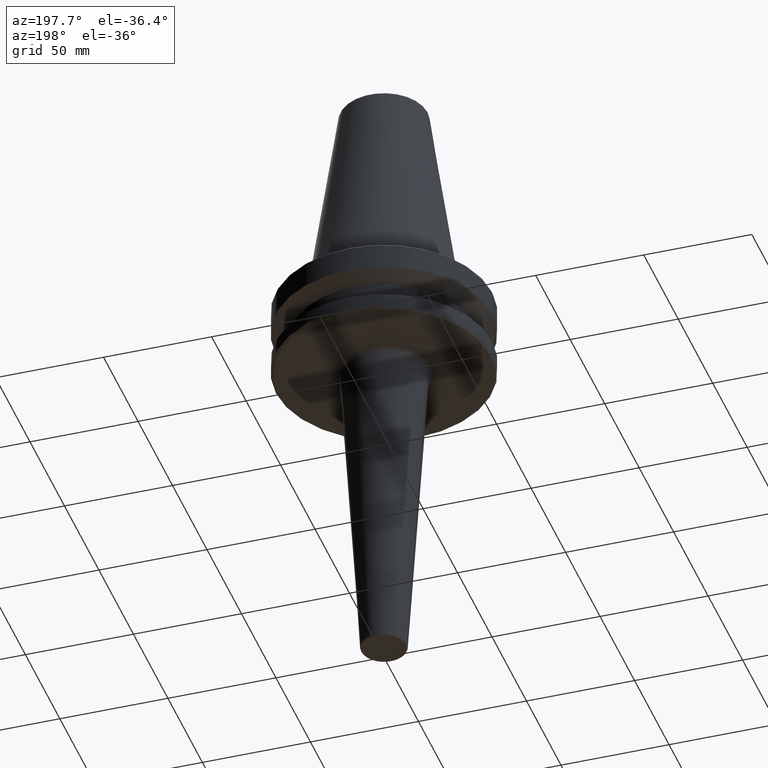
[diagram: clean part render]
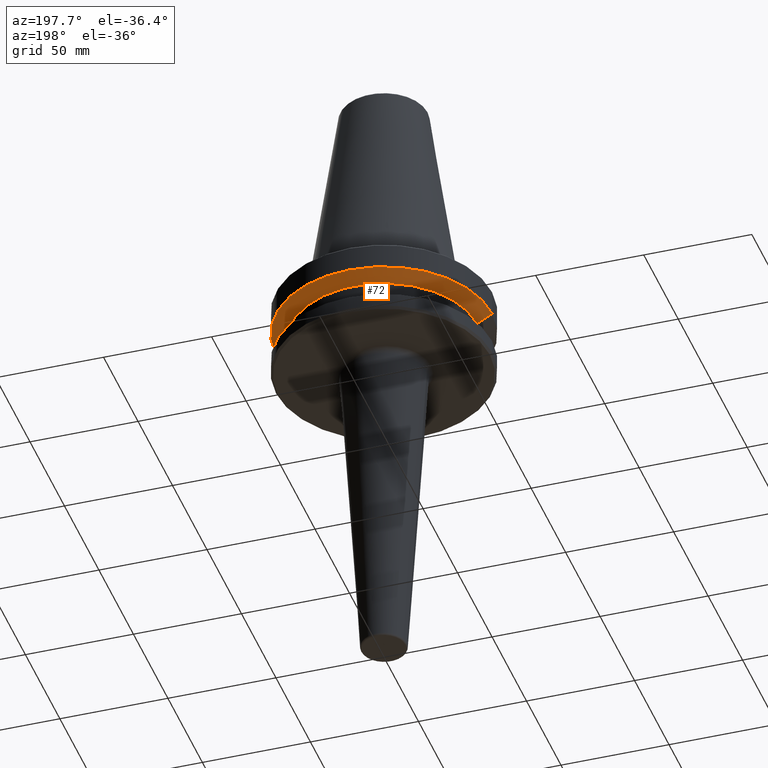
[diagram: same view with one face highlighted and labeled with its STEP entity id]
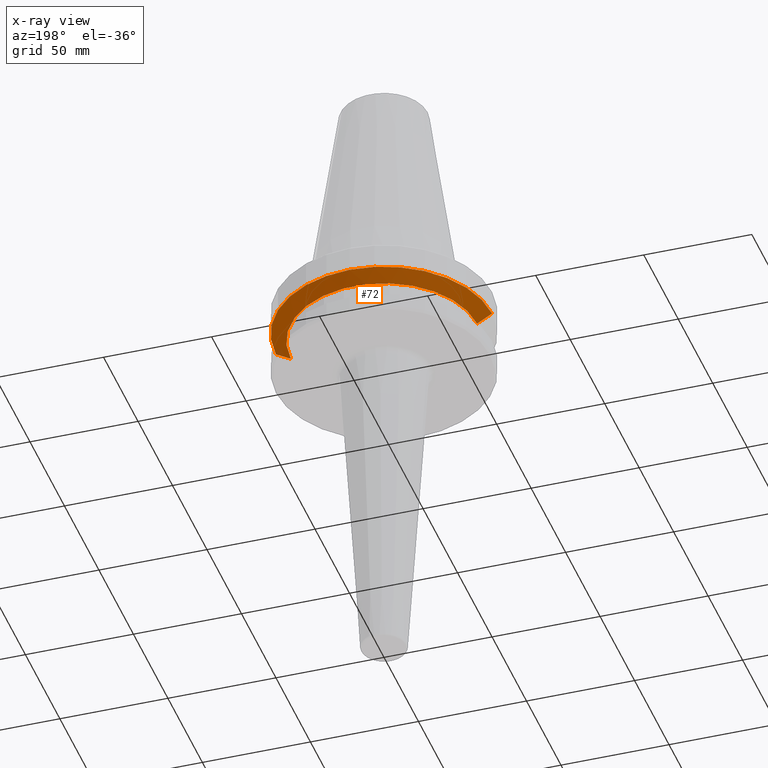
[diagram: x-ray of the same camera — body ghosted, the highlighted face saturated]
A machine part, auxiliary view. The second image highlights one B-rep face of the part: STEP entity #72.
The next image is the same camera in x-ray: the body ghosted, the highlighted face saturated — about 1% of this face is hidden behind the body in this view.
In plain terms, the highlighted conical surface has half-angle 60 deg.
Its self-contained STEP definition (entity closure, byte-faithful):
#10 = ORIENTED_EDGE ( 'NONE', *, *, #566, .F. ) ;
#16 = CONICAL_SURFACE ( 'NONE', #250, 43.07217782649103600, 1.047197551196598100 ) ;
#53 = DIRECTION ( 'NONE',  ( 1.000000000000000000, 0.0000000000000000000, 0.0000000000000000000 ) ) ;
#56 = VERTEX_POINT ( 'NONE', #173 ) ;
#57 = DIRECTION ( 'NONE',  ( 1.000000000000000000, 0.0000000000000000000, 0.0000000000000000000 ) ) ;
#72 = ADVANCED_FACE ( 'NONE', ( #972 ), #16, .T. ) ;
#135 = VERTEX_POINT ( 'NONE', #220 ) ;
#139 = EDGE_CURVE ( 'NONE', #339, #56, #154, .T. ) ;
#154 = LINE ( 'NONE', #833, #383 ) ;
#173 = CARTESIAN_POINT ( 'NONE',  ( -50.00000000000000000, 6.123233995736766900E-015, -15.70022000322675400 ) ) ;
#195 = ORIENTED_EDGE ( 'NONE', *, *, #802, .T. ) ;
#198 = AXIS2_PLACEMENT_3D ( 'NONE', #650, #964, #803 ) ;
#209 = AXIS2_PLACEMENT_3D ( 'NONE', #556, #920, #57 ) ;
#219 = CIRCLE ( 'NONE', #198, 43.07217782649103600 ) ;
#220 = CARTESIAN_POINT ( 'NONE',  ( 50.00000000000000000, 0.0000000000000000000, -15.70022000322675400 ) ) ;
#250 = AXIS2_PLACEMENT_3D ( 'NONE', #956, #673, #53 ) ;
#284 = EDGE_LOOP ( 'NONE', ( #195, #375, #10, #508 ) ) ;
#339 = VERTEX_POINT ( 'NONE', #572 ) ;
#375 = ORIENTED_EDGE ( 'NONE', *, *, #139, .T. ) ;
#383 = VECTOR ( 'NONE', #850, 1000.000000000000000 ) ;
#407 = CARTESIAN_POINT ( 'NONE',  ( 43.07217782649103600, 0.0000000000000000000, -19.70000000000001000 ) ) ;
#467 = CIRCLE ( 'NONE', #209, 50.00000000000000000 ) ;
#508 = ORIENTED_EDGE ( 'NONE', *, *, #846, .F. ) ;
#556 = CARTESIAN_POINT ( 'NONE',  ( 0.0000000000000000000, 0.0000000000000000000, -15.70022000322675400 ) ) ;
#560 = VERTEX_POINT ( 'NONE', #407 ) ;
#561 = CARTESIAN_POINT ( 'NONE',  ( 43.07217782649103600, 0.0000000000000000000, -19.70000000000001000 ) ) ;
#566 = EDGE_CURVE ( 'NONE', #135, #56, #467, .T. ) ;
#572 = CARTESIAN_POINT ( 'NONE',  ( -43.07217782649103600, 5.699027233244276000E-015, -19.70000000000001000 ) ) ;
#595 = LINE ( 'NONE', #561, #728 ) ;
#650 = CARTESIAN_POINT ( 'NONE',  ( 0.0000000000000000000, 0.0000000000000000000, -19.70000000000001000 ) ) ;
#673 = DIRECTION ( 'NONE',  ( -0.0000000000000000000, -0.0000000000000000000, 1.000000000000000000 ) ) ;
#728 = VECTOR ( 'NONE', #958, 1000.000000000000000 ) ;
#802 = EDGE_CURVE ( 'NONE', #560, #339, #219, .T. ) ;
#803 = DIRECTION ( 'NONE',  ( 1.000000000000000000, 0.0000000000000000000, 0.0000000000000000000 ) ) ;
#833 = CARTESIAN_POINT ( 'NONE',  ( -43.07217782649103600, 5.274820470751785100E-015, -19.70000000000001000 ) ) ;
#846 = EDGE_CURVE ( 'NONE', #560, #135, #595, .T. ) ;
#850 = DIRECTION ( 'NONE',  ( -0.8660254037844388200, 1.060575238724907200E-016, 0.4999999999999997200 ) ) ;
#920 = DIRECTION ( 'NONE',  ( -0.0000000000000000000, -0.0000000000000000000, 1.000000000000000000 ) ) ;
#956 = CARTESIAN_POINT ( 'NONE',  ( 0.0000000000000000000, 0.0000000000000000000, -19.70000000000001000 ) ) ;
#958 = DIRECTION ( 'NONE',  ( 0.8660254037844388200, 0.0000000000000000000, 0.4999999999999997200 ) ) ;
#964 = DIRECTION ( 'NONE',  ( -0.0000000000000000000, -0.0000000000000000000, 1.000000000000000000 ) ) ;
#972 = FACE_OUTER_BOUND ( 'NONE', #284, .T. ) ;